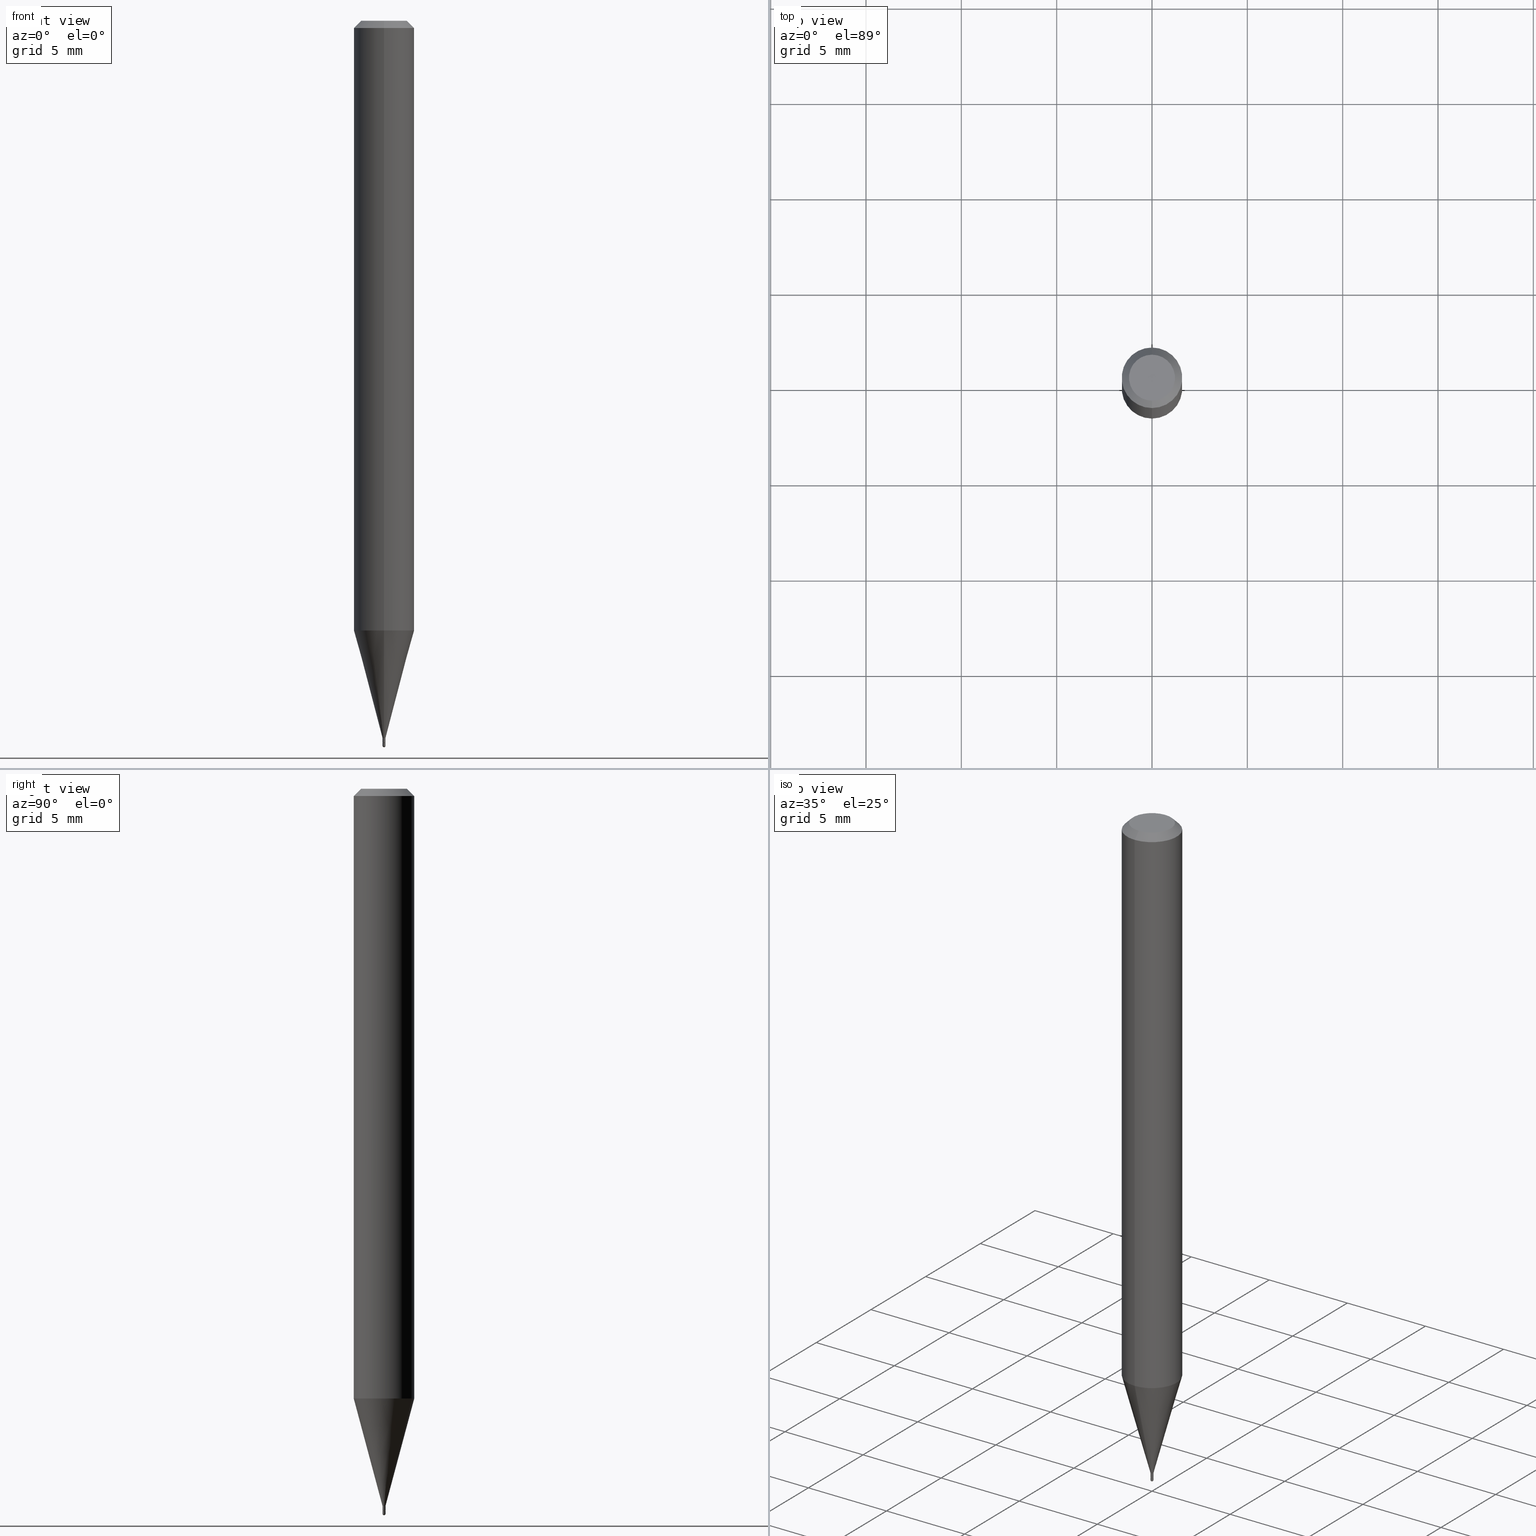
[diagram: canonical four-view strip — front | top / right | iso, engineering-drawing reading convention]
A machine part, canonical four-view strip (front | top / right | iso — engineering-drawing reading convention). The complete STEP part file that produces these views, byte-faithful:
ISO-10303-21;
HEADER;
FILE_DESCRIPTION (( 'STEP AP203' ),
    '1' );
FILE_NAME ('03030.STEP',
    '2024-03-08T18:01:40',
    ( '' ),
    ( '' ),
    'SwSTEP 2.0',
    'SolidWorks 2023',
    '' );
FILE_SCHEMA (( 'CONFIG_CONTROL_DESIGN' ));
ENDSEC;

DATA;
#1 = CALENDAR_DATE ( 2024, 8, 3 ) ;
#2 = EDGE_CURVE ( 'NONE', #227, #198, #40, .T. ) ;
#3 = APPROVAL ( #460, 'UNSPECIFIED' ) ;
#4 = AXIS2_PLACEMENT_3D ( 'NONE', #124, #237, #384 ) ;
#5 = CARTESIAN_POINT ( 'NONE',  ( 0.000000000000000000, 0.000000000000000000, 0.000000000000000000 ) ) ;
#6 = EDGE_CURVE ( 'NONE', #440, #257, #303, .T. ) ;
#7 = CARTESIAN_POINT ( 'NONE',  ( 2.094888803309526104E-17, 0.002999999999994793724, -1.491000000000000103 ) ) ;
#8 = DIRECTION ( 'NONE',  ( -2.445479479011040781E-29, 3.491466054748990607E-15, 1.000000000000000000 ) ) ;
#9 = CARTESIAN_POINT ( 'NONE',  ( -4.287811248607203282E-16, -0.06250000000000005551, -0.01499999999999954321 ) ) ;
#10 = DIRECTION ( 'NONE',  ( 1.000000000000000000, -6.982962677686332186E-15, 0.000000000000000000 ) ) ;
#11 = CIRCLE ( 'NONE', #178, 0.06250000000000000000 ) ;
#12 = AXIS2_PLACEMENT_3D ( 'NONE', #200, #208, #428 ) ;
#13 = EDGE_CURVE ( 'NONE', #150, #52, #356, .T. ) ;
#14 = DIRECTION ( 'NONE',  ( -6.982962677686265922E-15, -1.000000000000000000, 3.491466054748990607E-15 ) ) ;
#15 = DIRECTION ( 'NONE',  ( -1.000000000000000000, 6.982962677686265922E-15, -4.883557194083112340E-29 ) ) ;
#16 = PRODUCT ( '03030', '03030', '', ( #262 ) ) ;
#17 = CARTESIAN_POINT ( 'NONE',  ( -0.003000000000000000062, -5.194956838158857898E-15, -1.491000000000000103 ) ) ;
#18 = PRODUCT_DEFINITION ( 'UNKNOWN', '', #285, #137 ) ;
#19 = CIRCLE ( 'NONE', #131, 0.06250000000000000000 ) ;
#20 =( GEOMETRIC_REPRESENTATION_CONTEXT ( 3 ) GLOBAL_UNCERTAINTY_ASSIGNED_CONTEXT ( ( #495 ) ) GLOBAL_UNIT_ASSIGNED_CONTEXT ( ( #416, #158, #461 ) ) REPRESENTATION_CONTEXT ( 'NONE', 'WORKASPACE' ) );
#21 = DIRECTION ( 'NONE',  ( -2.445479479011041062E-29, 3.491466054748990607E-15, 1.000000000000000000 ) ) ;
#22 = ORIENTED_EDGE ( 'NONE', *, *, #498, .T. ) ;
#23 = PRODUCT_RELATED_PRODUCT_CATEGORY ( 'detail', '', ( #16 ) ) ;
#24 = CIRCLE ( 'NONE', #509, 0.003000000000000000062 ) ;
#25 = ADVANCED_FACE ( 'NONE', ( #429 ), #456, .T. ) ;
#26 = CARTESIAN_POINT ( 'NONE',  ( -4.364351673553607559E-16, -0.06250000000000438538, -1.258942976949652293 ) ) ;
#27 = SECURITY_CLASSIFICATION_LEVEL ( 'unclassified' ) ;
#28 = ORIENTED_EDGE ( 'NONE', *, *, #13, .T. ) ;
#29 = DIRECTION ( 'NONE',  ( -6.982962677686266711E-15, -1.000000000000000000, 3.491466054748991790E-15 ) ) ;
#30 = EDGE_LOOP ( 'NONE', ( #174, #22, #167, #504 ) ) ;
#31 = ORIENTED_EDGE ( 'NONE', *, *, #272, .T. ) ;
#32 = EDGE_CURVE ( 'NONE', #453, #406, #55, .T. ) ;
#33 = CARTESIAN_POINT ( 'NONE',  ( -5.856627857448510527E-45, 8.361639316576110184E-31, 2.394879166934145762E-16 ) ) ;
#34 = CALENDAR_DATE ( 2024, 8, 3 ) ;
#35 = AXIS2_PLACEMENT_3D ( 'NONE', #222, #282, #29 ) ;
#36 = AXIS2_PLACEMENT_3D ( 'NONE', #466, #79, #474 ) ;
#37 = DIRECTION ( 'NONE',  ( -6.982962677686265922E-15, -1.000000000000000000, 3.483106191921935554E-15 ) ) ;
#38 = CARTESIAN_POINT ( 'NONE',  ( 3.646209903205462455E-29, -5.205775887630746110E-15, -1.491000000000000103 ) ) ;
#39 = EDGE_CURVE ( 'NONE', #284, #470, #368, .T. ) ;
#40 = LINE ( 'NONE', #308, #344 ) ;
#41 = DIRECTION ( 'NONE',  ( 4.937700262164548042E-15, 0.7071067811865451302, -0.7071067811865499042 ) ) ;
#42 = DIRECTION ( 'NONE',  ( -4.851104656540964275E-15, -0.7071067811865500152, -0.7071067811865450192 ) ) ;
#43 = CARTESIAN_POINT ( 'NONE',  ( 3.644987163465957173E-29, -5.204030154603372027E-15, -1.490500000000000158 ) ) ;
#44 = VECTOR ( 'NONE', #398, 39.37007874015748143 ) ;
#45 = LINE ( 'NONE', #234, #328 ) ;
#46 = DIRECTION ( 'NONE',  ( -2.445479479011041062E-29, 3.491466054748990607E-15, 1.000000000000000000 ) ) ;
#47 = ORIENTED_EDGE ( 'NONE', *, *, #6, .T. ) ;
#48 = DIRECTION ( 'NONE',  ( 2.445479479011041062E-29, -3.491466054748990607E-15, -1.000000000000000000 ) ) ;
#49 = DIRECTION ( 'NONE',  ( -2.445479479011041062E-29, 3.491466054748990607E-15, 1.000000000000000000 ) ) ;
#50 = CARTESIAN_POINT ( 'NONE',  ( 1.776356839403896518E-17, 0.002499999999994794147, -1.491000000000000103 ) ) ;
#51 = CARTESIAN_POINT ( 'NONE',  ( 3.644987163465957173E-29, -5.204030154603372027E-15, -1.490500000000000158 ) ) ;
#52 = VERTEX_POINT ( 'NONE', #487 ) ;
#53 = DIRECTION ( 'NONE',  ( -1.000000000000000000, 6.982962677686265922E-15, -4.876176775795935793E-29 ) ) ;
#54 = ADVANCED_FACE ( 'NONE', ( #250 ), #274, .T. ) ;
#55 = CIRCLE ( 'NONE', #85, 0.002500000000000000052 ) ;
#56 = ORIENTED_EDGE ( 'NONE', *, *, #122, .F. ) ;
#57 = CARTESIAN_POINT ( 'NONE',  ( 0.000000000000000000, 0.000000000000000000, 0.000000000000000000 ) ) ;
#58 = ADVANCED_FACE ( 'NONE', ( #390 ), #397, .T. ) ;
#59 = DIRECTION ( 'NONE',  ( -4.937700262164674260E-15, -0.7071067811865632269, 0.7071067811865319186 ) ) ;
#60 = ADVANCED_FACE ( 'NONE', ( #331 ), #214, .F. ) ;
#61 = EDGE_CURVE ( 'NONE', #325, #482, #471, .T. ) ;
#62 = DIRECTION ( 'NONE',  ( -6.982962677686265922E-15, -1.000000000000000000, 3.483106191921935554E-15 ) ) ;
#63 = FACE_OUTER_BOUND ( 'NONE', #402, .T. ) ;
#64 = AXIS2_PLACEMENT_3D ( 'NONE', #57, #49, #110 ) ;
#65 = CIRCLE ( 'NONE', #423, 0.002999999999999833963 ) ;
#66 = ORIENTED_EDGE ( 'NONE', *, *, #305, .F. ) ;
#67 = LENGTH_MEASURE_WITH_UNIT ( LENGTH_MEASURE( 0.02539999999999999897 ), #347 );
#68 = DIRECTION ( 'NONE',  ( 1.000000000000000000, -6.982962677686332186E-15, 0.000000000000000000 ) ) ;
#69 = PERSON_AND_ORGANIZATION ( #252, #185 ) ;
#70 = DIRECTION ( 'NONE',  ( -2.445468806185136877E-29, 3.491481338843145188E-15, 1.000000000000000000 ) ) ;
#71 = COORDINATED_UNIVERSAL_TIME_OFFSET ( 5, 0, .BEHIND. ) ;
#72 = EDGE_CURVE ( 'NONE', #227, #357, #449, .T. ) ;
#73 = CARTESIAN_POINT ( 'NONE',  ( 2.131628207280246368E-17, 0.002999999999999924168, -1.047439816424670734E-17 ) ) ;
#74 = CARTESIAN_POINT ( 'NONE',  ( 2.131628207283901629E-17, 0.002999999999994690074, -1.497000000000000552 ) ) ;
#75 = VECTOR ( 'NONE', #149, 39.37007874015748143 ) ;
#76 = APPLICATION_PROTOCOL_DEFINITION ( 'international standard', 'config_control_design', 1994, #132 ) ;
#77 = LINE ( 'NONE', #73, #346 ) ;
#78 = EDGE_LOOP ( 'NONE', ( #31, #502, #130, #411 ) ) ;
#79 = DIRECTION ( 'NONE',  ( 1.000000000000000000, -6.982962677686265922E-15, 4.883557194083112340E-29 ) ) ;
#80 = CARTESIAN_POINT ( 'NONE',  ( -2.094888803302188156E-17, -0.003000000000005137446, -1.490500000000000158 ) ) ;
#81 = DIRECTION ( 'NONE',  ( -6.982962677686265922E-15, -1.000000000000000000, 0.000000000000000000 ) ) ;
#82 = ORIENTED_EDGE ( 'NONE', *, *, #104, .T. ) ;
#83 = CIRCLE ( 'NONE', #159, 0.06250000000000000000 ) ;
#84 = DIRECTION ( 'NONE',  ( -6.982962677686265922E-15, -1.000000000000000000, 3.491466054748990607E-15 ) ) ;
#85 = AXIS2_PLACEMENT_3D ( 'NONE', #180, #244, #317 ) ;
#86 = ADVANCED_FACE ( 'NONE', ( #405 ), #457, .T. ) ;
#87 = MANIFOLD_SOLID_BREP ( 'Body-Move/Copy2[1]', #142 ) ;
#88 = MANIFOLD_SOLID_BREP ( 'Body-Move/Copy2[2]', #441 ) ;
#89 = ORIENTED_EDGE ( 'NONE', *, *, #473, .F. ) ;
#90 = FACE_OUTER_BOUND ( 'NONE', #30, .T. ) ;
#91 = CARTESIAN_POINT ( 'NONE',  ( 3.646209903205462455E-29, -5.205775887630746110E-15, -1.491000000000000103 ) ) ;
#92 = VECTOR ( 'NONE', #59, 39.37007874015748143 ) ;
#93 = CC_DESIGN_PERSON_AND_ORGANIZATION_ASSIGNMENT ( #123, #339, ( #18 ) ) ;
#94 = AXIS2_PLACEMENT_3D ( 'NONE', #38, #116, #231 ) ;
#95 = CARTESIAN_POINT ( 'NONE',  ( 3.840629472727447874E-16, 0.04749999999999999362, 7.364327909283752044E-17 ) ) ;
#96 = PERSON_AND_ORGANIZATION_ROLE ( 'classification_officer' ) ;
#97 = CARTESIAN_POINT ( 'NONE',  ( -0.003000000000000000062, 2.131628207280300602E-17, -1.475680527076471750E-31 ) ) ;
#98 = CONICAL_SURFACE ( 'NONE', #12, 0.06250000000000000000, 0.7853981633974483900 ) ;
#99 = DIRECTION ( 'NONE',  ( -2.445479479011041062E-29, 3.491466054748990607E-15, 1.000000000000000000 ) ) ;
#100 = CARTESIAN_POINT ( 'NONE',  ( 4.440892098500932831E-16, 0.06249999999999560074, -1.258942976949652737 ) ) ;
#101 = CYLINDRICAL_SURFACE ( 'NONE', #492, 0.003000000000000000062 ) ;
#102 = DATE_AND_TIME ( #34, #276 ) ;
#103 = ORIENTED_EDGE ( 'NONE', *, *, #309, .T. ) ;
#104 = EDGE_CURVE ( 'NONE', #52, #257, #19, .T. ) ;
#105 = ORIENTED_EDGE ( 'NONE', *, *, #61, .T. ) ;
#106 = FACE_OUTER_BOUND ( 'NONE', #312, .T. ) ;
#107 = AXIS2_PLACEMENT_3D ( 'NONE', #43, #239, #202 ) ;
#108 = ORIENTED_EDGE ( 'NONE', *, *, #181, .F. ) ;
#109 = ORIENTED_EDGE ( 'NONE', *, *, #134, .T. ) ;
#110 = DIRECTION ( 'NONE',  ( -6.982962677686265922E-15, -1.000000000000000000, 3.491466054748990607E-15 ) ) ;
#111 = ORIENTED_EDGE ( 'NONE', *, *, #361, .T. ) ;
#112 = LINE ( 'NONE', #9, #493 ) ;
#113 = CARTESIAN_POINT ( 'NONE',  ( 1.953992523343893681E-17, 0.002499999999994794147, -1.491000000000000103 ) ) ;
#114 = EDGE_LOOP ( 'NONE', ( #424, #47, #127, #329 ) ) ;
#115 = PERSON_AND_ORGANIZATION_ROLE ( 'creator' ) ;
#116 = DIRECTION ( 'NONE',  ( -2.445479479011041062E-29, 3.491466054748990607E-15, 1.000000000000000000 ) ) ;
#117 = ORIENTED_EDGE ( 'NONE', *, *, #294, .T. ) ;
#118 = ORIENTED_EDGE ( 'NONE', *, *, #400, .T. ) ;
#119 = DIRECTION ( 'NONE',  ( 1.000000000000000000, -6.982962677686265922E-15, 4.883557194083112340E-29 ) ) ;
#120 = ORIENTED_EDGE ( 'NONE', *, *, #314, .F. ) ;
#121 = CIRCLE ( 'NONE', #258, 0.003000000000000000062 ) ;
#122 = EDGE_CURVE ( 'NONE', #238, #440, #190, .T. ) ;
#123 = PERSON_AND_ORGANIZATION ( #252, #185 ) ;
#124 = CARTESIAN_POINT ( 'NONE',  ( 3.646193990022038953E-29, -5.205798676215130324E-15, -1.491000000000000103 ) ) ;
#125 = CARTESIAN_POINT ( 'NONE',  ( 2.131628207283885605E-17, 0.002999999999994711758, -1.490500000000000158 ) ) ;
#126 = ORIENTED_EDGE ( 'NONE', *, *, #232, .T. ) ;
#127 = ORIENTED_EDGE ( 'NONE', *, *, #104, .F. ) ;
#128 = DIRECTION ( 'NONE',  ( -6.982962677686265133E-15, -1.000000000000000000, 0.000000000000000000 ) ) ;
#129 = DIRECTION ( 'NONE',  ( -6.982962677686264344E-15, -1.000000000000000000, 0.000000000000000000 ) ) ;
#130 = ORIENTED_EDGE ( 'NONE', *, *, #271, .F. ) ;
#131 = AXIS2_PLACEMENT_3D ( 'NONE', #376, #366, #62 ) ;
#132 = APPLICATION_CONTEXT ( 'configuration controlled 3d designs of mechanical parts and assemblies' ) ;
#133 = DIRECTION ( 'NONE',  ( -2.445479479011041062E-29, 3.491466054748990607E-15, 1.000000000000000000 ) ) ;
#134 = EDGE_CURVE ( 'NONE', #482, #325, #144, .T. ) ;
#135 = FACE_OUTER_BOUND ( 'NONE', #481, .T. ) ;
#136 = CYLINDRICAL_SURFACE ( 'NONE', #369, 0.06250000000000000000 ) ;
#137 = DESIGN_CONTEXT ( 'detailed design', #132, 'design' ) ;
#138 = CARTESIAN_POINT ( 'NONE',  ( 0.000000000000000000, 0.000000000000000000, 0.000000000000000000 ) ) ;
#139 = SHAPE_DEFINITION_REPRESENTATION ( #496, #233 ) ;
#140 = ORIENTED_EDGE ( 'NONE', *, *, #469, .T. ) ;
#141 = CARTESIAN_POINT ( 'NONE',  ( 3.621755108415351772E-29, -5.170861227083255778E-15, -1.481000000000000094 ) ) ;
#142 = CLOSED_SHELL ( 'NONE', ( #177, #484, #263, #183, #370 ) ) ;
#143 = ADVANCED_FACE ( 'NONE', ( #63 ), #372, .F. ) ;
#144 = CIRCLE ( 'NONE', #35, 0.04749999999999999362 ) ;
#145 = DIRECTION ( 'NONE',  ( 2.445479479011041062E-29, -3.491466054748990607E-15, -1.000000000000000000 ) ) ;
#146 = LOCAL_TIME ( 13, 1, 40.00000000000000000, #71 ) ;
#147 = CARTESIAN_POINT ( 'NONE',  ( 0.000000000000000000, 0.000000000000000000, 0.000000000000000000 ) ) ;
#148 = DIRECTION ( 'NONE',  ( -2.445479479011041062E-29, 3.491466054748990607E-15, 1.000000000000000000 ) ) ;
#149 = DIRECTION ( 'NONE',  ( 1.839019923739601104E-15, 0.2588190451025250693, 0.9659258262890670910 ) ) ;
#150 = VERTEX_POINT ( 'NONE', #26 ) ;
#151 = CARTESIAN_POINT ( 'NONE',  ( 3.660866802859150889E-29, -5.226747564248190733E-15, -1.497000000000000552 ) ) ;
#152 = APPLICATION_CONTEXT ( 'configuration controlled 3d designs of mechanical parts and assemblies' ) ;
#153 = EDGE_LOOP ( 'NONE', ( #350, #220, #404, #414 ) ) ;
#154 = CARTESIAN_POINT ( 'NONE',  ( 3.316907271900976096E-16, 0.04749999999999999362, -4.610067925386976768E-17 ) ) ;
#155 = ORIENTED_EDGE ( 'NONE', *, *, #72, .T. ) ;
#156 = DIRECTION ( 'NONE',  ( -6.982962677686265922E-15, -1.000000000000000000, 4.370956789862821150E-15 ) ) ;
#157 = AXIS2_PLACEMENT_3D ( 'NONE', #454, #505, #451 ) ;
#158 =( NAMED_UNIT ( * ) PLANE_ANGLE_UNIT ( ) SI_UNIT ( $, .RADIAN. ) );
#159 = AXIS2_PLACEMENT_3D ( 'NONE', #455, #189, #156 ) ;
#160 = ORIENTED_EDGE ( 'NONE', *, *, #2, .T. ) ;
#161 = CARTESIAN_POINT ( 'NONE',  ( -2.094888803302161039E-17, -0.003000000000005143951, -1.497000000000000552 ) ) ;
#162 = EDGE_LOOP ( 'NONE', ( #103, #291 ) ) ;
#163 = CC_DESIGN_DATE_AND_TIME_ASSIGNMENT ( #102, #336, ( #210 ) ) ;
#164 = CARTESIAN_POINT ( 'NONE',  ( 0.000000000000000000, 0.000000000000000000, 0.000000000000000000 ) ) ;
#165 = DIRECTION ( 'NONE',  ( -2.445479479011041062E-29, 3.491466054748990607E-15, 1.000000000000000000 ) ) ;
#166 = AXIS2_PLACEMENT_3D ( 'NONE', #154, #145, #450 ) ;
#167 = ORIENTED_EDGE ( 'NONE', *, *, #338, .T. ) ;
#168 = CC_DESIGN_APPROVAL ( #489, ( #210 ) ) ;
#169 = ORIENTED_EDGE ( 'NONE', *, *, #467, .F. ) ;
#170 = CARTESIAN_POINT ( 'NONE',  ( 3.668219218516502966E-31, -5.237199082123403129E-17, -0.01499999999999976179 ) ) ;
#171 = EDGE_CURVE ( 'NONE', #463, #216, #464, .T. ) ;
#172 = DIRECTION ( 'NONE',  ( 2.438088387897960049E-29, -3.491481338843145188E-15, -1.000000000000000000 ) ) ;
#173 = CARTESIAN_POINT ( 'NONE',  ( 0.000000000000000000, 0.000000000000000000, 0.000000000000000000 ) ) ;
#174 = ORIENTED_EDGE ( 'NONE', *, *, #206, .F. ) ;
#175 = CARTESIAN_POINT ( 'NONE',  ( 2.327027459614661497E-16, 0.002999999999994752090, -1.481000000000000094 ) ) ;
#176 = CARTESIAN_POINT ( 'NONE',  ( 3.667818384447574759E-29, -5.237773099324335255E-15, -1.500000000000000222 ) ) ;
#177 = ADVANCED_FACE ( 'NONE', ( #106 ), #101, .T. ) ;
#178 = AXIS2_PLACEMENT_3D ( 'NONE', #179, #479, #318 ) ;
#179 = CARTESIAN_POINT ( 'NONE',  ( 3.078719215375445112E-29, -4.395556668884352464E-15, -1.258942976949652515 ) ) ;
#180 = CARTESIAN_POINT ( 'NONE',  ( 3.646209903205462455E-29, -5.205775887630746110E-15, -1.491000000000000103 ) ) ;
#181 = EDGE_CURVE ( 'NONE', #325, #257, #45, .T. ) ;
#182 = ORIENTED_EDGE ( 'NONE', *, *, #351, .F. ) ;
#183 = ADVANCED_FACE ( 'NONE', ( #306 ), #340, .T. ) ;
#184 = APPROVAL_DATE_TIME ( #296, #3 ) ;
#185 = ORGANIZATION ( 'UNSPECIFIED', 'UNSPECIFIED', '' ) ;
#186 = AXIS2_PLACEMENT_3D ( 'NONE', #173, #319, #84 ) ;
#187 = AXIS2_PLACEMENT_3D ( 'NONE', #141, #46, #264 ) ;
#188 = DATE_AND_TIME ( #212, #203 ) ;
#189 = DIRECTION ( 'NONE',  ( -2.445479479011041062E-29, 3.491466054748990607E-15, 1.000000000000000000 ) ) ;
#190 = LINE ( 'NONE', #501, #75 ) ;
#191 = CALENDAR_DATE ( 2024, 8, 3 ) ;
#192 = DIRECTION ( 'NONE',  ( 1.000000000000000000, -6.982962677686332186E-15, 0.000000000000000000 ) ) ;
#193 = DATE_AND_TIME ( #191, #409 ) ;
#194 = AXIS2_PLACEMENT_3D ( 'NONE', #349, #165, #129 ) ;
#195 = ADVANCED_FACE ( 'NONE', ( #383 ), #434, .T. ) ;
#196 = ORIENTED_EDGE ( 'NONE', *, *, #272, .F. ) ;
#197 = DIRECTION ( 'NONE',  ( 0.000000000000000000, 0.000000000000000000, 1.000000000000000000 ) ) ;
#198 = VERTEX_POINT ( 'NONE', #270 ) ;
#199 = COORDINATED_UNIVERSAL_TIME_OFFSET ( 5, 0, .BEHIND. ) ;
#200 = CARTESIAN_POINT ( 'NONE',  ( 3.668219218516502966E-31, -5.237199082123403129E-17, -0.01499999999999976179 ) ) ;
#201 = VECTOR ( 'NONE', #70, 39.37007874015748143 ) ;
#202 = DIRECTION ( 'NONE',  ( -6.982962677686265922E-15, -1.000000000000000000, 0.000000000000000000 ) ) ;
#203 = LOCAL_TIME ( 13, 1, 40.00000000000000000, #323 ) ;
#204 = ORIENTED_EDGE ( 'NONE', *, *, #32, .T. ) ;
#205 = DIRECTION ( 'NONE',  ( 6.982962677686265922E-15, 1.000000000000000000, -3.483106191921935554E-15 ) ) ;
#206 = EDGE_CURVE ( 'NONE', #406, #293, #433, .T. ) ;
#207 = AXIS2_PLACEMENT_3D ( 'NONE', #91, #476, #81 ) ;
#208 = DIRECTION ( 'NONE',  ( 2.445479479011041062E-29, -3.491466054748990607E-15, -1.000000000000000000 ) ) ;
#209 = VECTOR ( 'NONE', #459, 39.37007874015748143 ) ;
#210 = SECURITY_CLASSIFICATION ( '', '', #27 ) ;
#211 = ADVANCED_FACE ( 'NONE', ( #90 ), #442, .T. ) ;
#212 = CALENDAR_DATE ( 2024, 8, 3 ) ;
#213 = ORIENTED_EDGE ( 'NONE', *, *, #321, .F. ) ;
#214 = PLANE ( 'NONE',  #166 ) ;
#215 = DIRECTION ( 'NONE',  ( -2.445468806185136597E-29, 3.491481338843145583E-15, 1.000000000000000000 ) ) ;
#216 = VERTEX_POINT ( 'NONE', #278 ) ;
#217 = DIRECTION ( 'NONE',  ( -2.445468806185136597E-29, 3.491481338843145583E-15, 1.000000000000000000 ) ) ;
#218 = AXIS2_PLACEMENT_3D ( 'NONE', #164, #215, #462 ) ;
#219 = DIRECTION ( 'NONE',  ( 1.000000000000000000, -7.105427357601001070E-15, 4.926315508542082329E-29 ) ) ;
#220 = ORIENTED_EDGE ( 'NONE', *, *, #61, .F. ) ;
#221 = EDGE_CURVE ( 'NONE', #238, #216, #228, .T. ) ;
#222 = CARTESIAN_POINT ( 'NONE',  ( -5.856627857448510527E-45, 8.361639316576110184E-31, 2.394879166934145762E-16 ) ) ;
#223 = FACE_OUTER_BOUND ( 'NONE', #378, .T. ) ;
#224 = EDGE_LOOP ( 'NONE', ( #204, #438, #196, #255 ) ) ;
#225 = COORDINATED_UNIVERSAL_TIME_OFFSET ( 5, 0, .BEHIND. ) ;
#226 = APPROVAL_STATUS ( 'not_yet_approved' ) ;
#227 = VERTEX_POINT ( 'NONE', #292 ) ;
#228 = CIRCLE ( 'NONE', #187, 0.002999999999999923735 ) ;
#229 = APPROVAL_ROLE ( '' ) ;
#230 = DIRECTION ( 'NONE',  ( 1.000000000000000000, 0.000000000000000000, 0.000000000000000000 ) ) ;
#231 = DIRECTION ( 'NONE',  ( -6.982962677686265922E-15, -1.000000000000000000, 0.000000000000000000 ) ) ;
#232 = EDGE_CURVE ( 'NONE', #357, #256, #121, .T. ) ;
#233 = ADVANCED_BREP_SHAPE_REPRESENTATION ( '03030', ( #87, #88, #354 ), #20 ) ;
#234 = CARTESIAN_POINT ( 'NONE',  ( 4.364351673553919652E-16, 0.06249999999999995143, -0.01499999999999997863 ) ) ;
#235 = APPROVAL_ROLE ( '' ) ;
#236 = SPHERICAL_SURFACE ( 'NONE', #36, 0.002999999999999833963 ) ;
#237 = DIRECTION ( 'NONE',  ( -2.445468806185136597E-29, 3.491481338843145583E-15, 1.000000000000000000 ) ) ;
#238 = VERTEX_POINT ( 'NONE', #175 ) ;
#239 = DIRECTION ( 'NONE',  ( -2.445479479011041062E-29, 3.491466054748990607E-15, 1.000000000000000000 ) ) ;
#240 = EDGE_LOOP ( 'NONE', ( #477, #334, #28, #120 ) ) ;
#241 = FACE_OUTER_BOUND ( 'NONE', #240, .T. ) ;
#242 = AXIS2_PLACEMENT_3D ( 'NONE', #5, #133, #14 ) ;
#243 = FACE_OUTER_BOUND ( 'NONE', #162, .T. ) ;
#244 = DIRECTION ( 'NONE',  ( -2.445479479011041062E-29, 3.491466054748990607E-15, 1.000000000000000000 ) ) ;
#245 = APPROVAL_PERSON_ORGANIZATION ( #510, #489, #229 ) ;
#246 = DIRECTION ( 'NONE',  ( 1.000000000000000000, -6.982962677686332186E-15, 0.000000000000000000 ) ) ;
#247 = DIRECTION ( 'NONE',  ( -2.445468806185136597E-29, 3.491481338843145583E-15, 1.000000000000000000 ) ) ;
#248 = CC_DESIGN_PERSON_AND_ORGANIZATION_ASSIGNMENT ( #506, #96, ( #210 ) ) ;
#249 = ORIENTED_EDGE ( 'NONE', *, *, #309, .F. ) ;
#250 = FACE_OUTER_BOUND ( 'NONE', #392, .T. ) ;
#251 = AXIS2_PLACEMENT_3D ( 'NONE', #483, #48, #205 ) ;
#252 = PERSON ( 'UNSPECIFIED', 'UNSPECIFIED', 'UNSPECIFIED', ('UNSPECIFIED'), ('UNSPECIFIED'), ('UNSPECIFIED') ) ;
#253 = EDGE_CURVE ( 'NONE', #256, #470, #24, .T. ) ;
#254 = AXIS2_PLACEMENT_3D ( 'NONE', #266, #217, #192 ) ;
#255 = ORIENTED_EDGE ( 'NONE', *, *, #338, .F. ) ;
#256 = VERTEX_POINT ( 'NONE', #486 ) ;
#257 = VERTEX_POINT ( 'NONE', #393 ) ;
#258 = AXIS2_PLACEMENT_3D ( 'NONE', #413, #381, #10 ) ;
#259 = CARTESIAN_POINT ( 'NONE',  ( 0.000000000000000000, 0.000000000000000000, 0.000000000000000000 ) ) ;
#260 = EDGE_LOOP ( 'NONE', ( #508, #387, #169, #213 ) ) ;
#261 = DIRECTION ( 'NONE',  ( -2.445468806185136597E-29, 3.491481338843145583E-15, 1.000000000000000000 ) ) ;
#262 = MECHANICAL_CONTEXT ( 'NONE', #152, 'mechanical' ) ;
#263 = ADVANCED_FACE ( 'NONE', ( #243 ), #391, .F. ) ;
#264 = DIRECTION ( 'NONE',  ( -6.982962677686264344E-15, -1.000000000000000000, 0.000000000000000000 ) ) ;
#265 = ORIENTED_EDGE ( 'NONE', *, *, #321, .T. ) ;
#266 = CARTESIAN_POINT ( 'NONE',  ( 3.660866802859150889E-29, -5.226747564248190733E-15, -1.497000000000000552 ) ) ;
#267 = ORIENTED_EDGE ( 'NONE', *, *, #400, .F. ) ;
#268 = PERSON_AND_ORGANIZATION ( #252, #185 ) ;
#269 = ADVANCED_FACE ( 'NONE', ( #352 ), #98, .T. ) ;
#270 = CARTESIAN_POINT ( 'NONE',  ( 0.003000000000000000062, -5.226747564248189155E-15, -1.491000000000000103 ) ) ;
#271 = EDGE_CURVE ( 'NONE', #216, #238, #485, .T. ) ;
#272 = EDGE_CURVE ( 'NONE', #463, #293, #322, .T. ) ;
#273 = CARTESIAN_POINT ( 'NONE',  ( -4.364351673553916201E-16, -0.06250000000000000000, 2.182166284218119129E-16 ) ) ;
#274 = CYLINDRICAL_SURFACE ( 'NONE', #186, 0.002999999999999924168 ) ;
#275 = AXIS2_PLACEMENT_3D ( 'NONE', #358, #21, #494 ) ;
#276 = LOCAL_TIME ( 13, 1, 40.00000000000000000, #225 ) ;
#277 = CARTESIAN_POINT ( 'NONE',  ( -1.745740669417920106E-17, -0.002500000000005205957, -1.491000000000000103 ) ) ;
#278 = CARTESIAN_POINT ( 'NONE',  ( -2.094888803302204488E-17, -0.003000000000005094512, -1.481000000000000094 ) ) ;
#279 = CIRCLE ( 'NONE', #408, 0.003000000000000000062 ) ;
#280 = APPROVAL_PERSON_ORGANIZATION ( #290, #3, #511 ) ;
#281 = DIRECTION ( 'NONE',  ( -6.982962677686265922E-15, -1.000000000000000000, 3.491466054748990607E-15 ) ) ;
#282 = DIRECTION ( 'NONE',  ( -2.445479479011041062E-29, 3.491466054748990607E-15, 1.000000000000000000 ) ) ;
#283 = ORIENTED_EDGE ( 'NONE', *, *, #134, .F. ) ;
#284 = VERTEX_POINT ( 'NONE', #176 ) ;
#285 = PRODUCT_DEFINITION_FORMATION_WITH_SPECIFIED_SOURCE ( 'ANY', '', #16, .NOT_KNOWN. ) ;
#286 = AXIS2_PLACEMENT_3D ( 'NONE', #403, #332, #503 ) ;
#287 = CC_DESIGN_PERSON_AND_ORGANIZATION_ASSIGNMENT ( #377, #446, ( #285 ) ) ;
#288 = CARTESIAN_POINT ( 'NONE',  ( -2.094888803305826777E-17, -0.002999999999999924168, 1.047439816424670734E-17 ) ) ;
#289 = CC_DESIGN_SECURITY_CLASSIFICATION ( #210, ( #285 ) ) ;
#290 = PERSON_AND_ORGANIZATION ( #252, #185 ) ;
#291 = ORIENTED_EDGE ( 'NONE', *, *, #488, .T. ) ;
#292 = CARTESIAN_POINT ( 'NONE',  ( 0.003000000000000000062, -5.237222008264719754E-15, -1.497000000000000552 ) ) ;
#293 = VERTEX_POINT ( 'NONE', #125 ) ;
#294 = EDGE_CURVE ( 'NONE', #293, #463, #301, .T. ) ;
#295 = DIRECTION ( 'NONE',  ( 1.000000000000000000, -6.982962677686266711E-15, 4.876176775795935232E-29 ) ) ;
#296 = DATE_AND_TIME ( #1, #146 ) ;
#297 = DIRECTION ( 'NONE',  ( -2.445479479011040781E-29, 3.491466054748990607E-15, 1.000000000000000000 ) ) ;
#298 = ORIENTED_EDGE ( 'NONE', *, *, #221, .T. ) ;
#299 = DIRECTION ( 'NONE',  ( 7.105427357601001070E-15, 1.000000000000000000, 0.000000000000000000 ) ) ;
#300 = ADVANCED_FACE ( 'NONE', ( #348 ), #316, .T. ) ;
#301 = CIRCLE ( 'NONE', #107, 0.002999999999999924602 ) ;
#302 = CC_DESIGN_APPROVAL ( #3, ( #285 ) ) ;
#303 = LINE ( 'NONE', #478, #386 ) ;
#304 = DIRECTION ( 'NONE',  ( -2.445479479011041062E-29, 3.491466054748990607E-15, 1.000000000000000000 ) ) ;
#305 = EDGE_CURVE ( 'NONE', #440, #150, #11, .T. ) ;
#306 = FACE_OUTER_BOUND ( 'NONE', #452, .T. ) ;
#307 = ORIENTED_EDGE ( 'NONE', *, *, #498, .F. ) ;
#308 = CARTESIAN_POINT ( 'NONE',  ( 0.003000000000000000062, -2.094888803305880087E-17, 1.462853032738780615E-31 ) ) ;
#309 = EDGE_CURVE ( 'NONE', #198, #330, #279, .T. ) ;
#310 = DIRECTION ( 'NONE',  ( -2.445479479011041062E-29, 3.491466054748990607E-15, 1.000000000000000000 ) ) ;
#311 = CARTESIAN_POINT ( 'NONE',  ( 3.660610252972396344E-29, -5.227114958287934137E-15, -1.497000000000000108 ) ) ;
#312 = EDGE_LOOP ( 'NONE', ( #126, #360, #249, #419, #155 ) ) ;
#313 = ADVANCED_FACE ( 'NONE', ( #135 ), #422, .T. ) ;
#314 = EDGE_CURVE ( 'NONE', #257, #52, #345, .T. ) ;
#315 = VECTOR ( 'NONE', #439, 39.37007874015748143 ) ;
#316 = CYLINDRICAL_SURFACE ( 'NONE', #242, 0.002999999999999924168 ) ;
#317 = DIRECTION ( 'NONE',  ( -6.982962677686265922E-15, -1.000000000000000000, 0.000000000000000000 ) ) ;
#318 = DIRECTION ( 'NONE',  ( -6.982962677686265922E-15, -1.000000000000000000, 4.370956789862821150E-15 ) ) ;
#319 = DIRECTION ( 'NONE',  ( -2.445479479011041062E-29, 3.491466054748990607E-15, 1.000000000000000000 ) ) ;
#320 = ADVANCED_FACE ( 'NONE', ( #241 ), #136, .T. ) ;
#321 = EDGE_CURVE ( 'NONE', #216, #150, #491, .T. ) ;
#322 = CIRCLE ( 'NONE', #335, 0.002999999999999924602 ) ;
#323 = COORDINATED_UNIVERSAL_TIME_OFFSET ( 5, 0, .BEHIND. ) ;
#324 = CIRCLE ( 'NONE', #4, 0.003000000000000000062 ) ;
#325 = VERTEX_POINT ( 'NONE', #95 ) ;
#326 = APPROVAL_DATE_TIME ( #188, #489 ) ;
#327 = CC_DESIGN_PERSON_AND_ORGANIZATION_ASSIGNMENT ( #373, #115, ( #285 ) ) ;
#328 = VECTOR ( 'NONE', #41, 39.37007874015748143 ) ;
#329 = ORIENTED_EDGE ( 'NONE', *, *, #13, .F. ) ;
#330 = VERTEX_POINT ( 'NONE', #17 ) ;
#331 = FACE_OUTER_BOUND ( 'NONE', #417, .T. ) ;
#332 = DIRECTION ( 'NONE',  ( -2.445479479011041062E-29, 3.491466054748990607E-15, 1.000000000000000000 ) ) ;
#333 = CARTESIAN_POINT ( 'NONE',  ( 3.660610252972396344E-29, -5.227114958287934137E-15, -1.497000000000000108 ) ) ;
#334 = ORIENTED_EDGE ( 'NONE', *, *, #305, .T. ) ;
#335 = AXIS2_PLACEMENT_3D ( 'NONE', #51, #304, #475 ) ;
#336 = DATE_TIME_ROLE ( 'classification_date' ) ;
#337 = FACE_OUTER_BOUND ( 'NONE', #401, .T. ) ;
#338 = EDGE_CURVE ( 'NONE', #453, #463, #359, .T. ) ;
#339 = PERSON_AND_ORGANIZATION_ROLE ( 'creator' ) ;
#340 = SPHERICAL_SURFACE ( 'NONE', #399, 0.002999999999999833963 ) ;
#341 = CALENDAR_DATE ( 2024, 8, 3 ) ;
#342 = DIRECTION ( 'NONE',  ( -2.445468806185136877E-29, 3.491481338843145188E-15, 1.000000000000000000 ) ) ;
#343 = CARTESIAN_POINT ( 'NONE',  ( 3.621755108415351772E-29, -5.170861227083255778E-15, -1.481000000000000094 ) ) ;
#344 = VECTOR ( 'NONE', #342, 39.37007874015748143 ) ;
#345 = CIRCLE ( 'NONE', #353, 0.06250000000000000000 ) ;
#346 = VECTOR ( 'NONE', #297, 39.37007874015748143 ) ;
#347 =( LENGTH_UNIT ( ) NAMED_UNIT ( * ) SI_UNIT ( $, .METRE. ) );
#348 = FACE_OUTER_BOUND ( 'NONE', #78, .T. ) ;
#349 = CARTESIAN_POINT ( 'NONE',  ( 3.621755108415351772E-29, -5.170861227083255778E-15, -1.481000000000000094 ) ) ;
#350 = ORIENTED_EDGE ( 'NONE', *, *, #469, .F. ) ;
#351 = EDGE_CURVE ( 'NONE', #256, #330, #445, .T. ) ;
#352 = FACE_OUTER_BOUND ( 'NONE', #153, .T. ) ;
#353 = AXIS2_PLACEMENT_3D ( 'NONE', #170, #430, #37 ) ;
#354 = AXIS2_PLACEMENT_3D ( 'NONE', #147, #197, #230 ) ;
#355 = DIRECTION ( 'NONE',  ( -6.982962677686264344E-15, -1.000000000000000000, 0.000000000000000000 ) ) ;
#356 = LINE ( 'NONE', #273, #420 ) ;
#357 = VERTEX_POINT ( 'NONE', #74 ) ;
#358 = CARTESIAN_POINT ( 'NONE',  ( 3.646209903205462455E-29, -5.205775887630746110E-15, -1.491000000000000103 ) ) ;
#359 = LINE ( 'NONE', #277, #92 ) ;
#360 = ORIENTED_EDGE ( 'NONE', *, *, #351, .T. ) ;
#361 = EDGE_CURVE ( 'NONE', #470, #227, #385, .T. ) ;
#362 = AXIS2_PLACEMENT_3D ( 'NONE', #33, #99, #410 ) ;
#363 = APPROVAL_STATUS ( 'not_yet_approved' ) ;
#364 = CC_DESIGN_APPROVAL ( #421, ( #18 ) ) ;
#365 = CC_DESIGN_PERSON_AND_ORGANIZATION_ASSIGNMENT ( #268, #507, ( #16 ) ) ;
#366 = DIRECTION ( 'NONE',  ( -2.445479479011041062E-29, 3.491466054748990607E-15, 1.000000000000000000 ) ) ;
#367 = CYLINDRICAL_SURFACE ( 'NONE', #218, 0.003000000000000000062 ) ;
#368 = CIRCLE ( 'NONE', #394, 0.002999999999999833963 ) ;
#369 = AXIS2_PLACEMENT_3D ( 'NONE', #138, #148, #281 ) ;
#370 = ADVANCED_FACE ( 'NONE', ( #337 ), #367, .T. ) ;
#371 = APPROVAL_PERSON_ORGANIZATION ( #69, #421, #235 ) ;
#372 = PLANE ( 'NONE',  #157 ) ;
#373 = PERSON_AND_ORGANIZATION ( #252, #185 ) ;
#374 = ORIENTED_EDGE ( 'NONE', *, *, #72, .F. ) ;
#375 = ORIENTED_EDGE ( 'NONE', *, *, #221, .F. ) ;
#376 = CARTESIAN_POINT ( 'NONE',  ( 3.668219218516502966E-31, -5.237199082123403129E-17, -0.01499999999999976179 ) ) ;
#377 = PERSON_AND_ORGANIZATION ( #252, #185 ) ;
#378 = EDGE_LOOP ( 'NONE', ( #412, #118, #374, #380 ) ) ;
#379 = ORIENTED_EDGE ( 'NONE', *, *, #32, .F. ) ;
#380 = ORIENTED_EDGE ( 'NONE', *, *, #361, .F. ) ;
#381 = DIRECTION ( 'NONE',  ( -2.445468806185136597E-29, 3.491481338843145583E-15, 1.000000000000000000 ) ) ;
#382 = CARTESIAN_POINT ( 'NONE',  ( -3.773273898774340269E-16, -0.04749999999999999362, 4.053325542939916320E-16 ) ) ;
#383 = FACE_OUTER_BOUND ( 'NONE', #260, .T. ) ;
#384 = DIRECTION ( 'NONE',  ( 1.000000000000000000, -6.982962677686332186E-15, 0.000000000000000000 ) ) ;
#385 = CIRCLE ( 'NONE', #458, 0.003000000000000000062 ) ;
#386 = VECTOR ( 'NONE', #8, 39.37007874015748143 ) ;
#387 = ORIENTED_EDGE ( 'NONE', *, *, #122, .T. ) ;
#388 = AXIS2_PLACEMENT_3D ( 'NONE', #343, #310, #355 ) ;
#389 = DIRECTION ( 'NONE',  ( -2.445468806185136597E-29, 3.491481338843145583E-15, 1.000000000000000000 ) ) ;
#390 = FACE_OUTER_BOUND ( 'NONE', #114, .T. ) ;
#391 = PLANE ( 'NONE',  #395 ) ;
#392 = EDGE_LOOP ( 'NONE', ( #89, #117, #444, #375 ) ) ;
#393 = CARTESIAN_POINT ( 'NONE',  ( 4.440892098500935790E-16, 0.06249999999999995143, -0.01499999999999997863 ) ) ;
#394 = AXIS2_PLACEMENT_3D ( 'NONE', #432, #15, #128 ) ;
#395 = AXIS2_PLACEMENT_3D ( 'NONE', #7, #172, #53 ) ;
#396 = LOCAL_TIME ( 13, 1, 40.00000000000000000, #465 ) ;
#397 = CYLINDRICAL_SURFACE ( 'NONE', #64, 0.06250000000000000000 ) ;
#398 = DIRECTION ( 'NONE',  ( -1.807323732225330928E-15, -0.2588190451025182970, 0.9659258262890689783 ) ) ;
#399 = AXIS2_PLACEMENT_3D ( 'NONE', #311, #119, #480 ) ;
#400 = EDGE_CURVE ( 'NONE', #284, #357, #65, .T. ) ;
#401 = EDGE_LOOP ( 'NONE', ( #182, #447, #111, #160, #500 ) ) ;
#402 = EDGE_LOOP ( 'NONE', ( #379, #307 ) ) ;
#403 = CARTESIAN_POINT ( 'NONE',  ( 3.621755108415351772E-29, -5.170861227083255778E-15, -1.481000000000000094 ) ) ;
#404 = ORIENTED_EDGE ( 'NONE', *, *, #181, .T. ) ;
#405 = FACE_OUTER_BOUND ( 'NONE', #407, .T. ) ;
#406 = VERTEX_POINT ( 'NONE', #113 ) ;
#407 = EDGE_LOOP ( 'NONE', ( #56, #298, #265, #66 ) ) ;
#408 = AXIS2_PLACEMENT_3D ( 'NONE', #490, #389, #425 ) ;
#409 = LOCAL_TIME ( 13, 1, 40.00000000000000000, #199 ) ;
#410 = DIRECTION ( 'NONE',  ( -6.982962677686266711E-15, -1.000000000000000000, 3.491466054748991790E-15 ) ) ;
#411 = ORIENTED_EDGE ( 'NONE', *, *, #171, .F. ) ;
#412 = ORIENTED_EDGE ( 'NONE', *, *, #39, .F. ) ;
#413 = CARTESIAN_POINT ( 'NONE',  ( 3.660866802859150889E-29, -5.226747564248190733E-15, -1.497000000000000552 ) ) ;
#414 = ORIENTED_EDGE ( 'NONE', *, *, #314, .T. ) ;
#415 = APPROVAL_DATE_TIME ( #193, #421 ) ;
#416 =( CONVERSION_BASED_UNIT ( 'INCH', #67 ) LENGTH_UNIT ( ) NAMED_UNIT ( #497 ) );
#417 = EDGE_LOOP ( 'NONE', ( #105, #109 ) ) ;
#418 = DIRECTION ( 'NONE',  ( -2.445468806185136597E-29, 3.491481338843145583E-15, 1.000000000000000000 ) ) ;
#419 = ORIENTED_EDGE ( 'NONE', *, *, #2, .F. ) ;
#420 = VECTOR ( 'NONE', #437, 39.37007874015748143 ) ;
#421 = APPROVAL ( #226, 'UNSPECIFIED' ) ;
#422 = CONICAL_SURFACE ( 'NONE', #251, 0.06250000000000000000, 0.7853981633974483900 ) ;
#423 = AXIS2_PLACEMENT_3D ( 'NONE', #333, #219, #299 ) ;
#424 = ORIENTED_EDGE ( 'NONE', *, *, #467, .T. ) ;
#425 = DIRECTION ( 'NONE',  ( 1.000000000000000000, -6.982962677686332186E-15, 0.000000000000000000 ) ) ;
#426 = DATE_TIME_ROLE ( 'creation_date' ) ;
#427 = ORIENTED_EDGE ( 'NONE', *, *, #253, .F. ) ;
#428 = DIRECTION ( 'NONE',  ( 6.982962677686265922E-15, 1.000000000000000000, -3.483106191921935554E-15 ) ) ;
#429 = FACE_OUTER_BOUND ( 'NONE', #224, .T. ) ;
#430 = DIRECTION ( 'NONE',  ( -2.445479479011041062E-29, 3.491466054748990607E-15, 1.000000000000000000 ) ) ;
#431 = CC_DESIGN_DATE_AND_TIME_ASSIGNMENT ( #472, #426, ( #18 ) ) ;
#432 = CARTESIAN_POINT ( 'NONE',  ( 3.660610252972396344E-29, -5.227114958287934137E-15, -1.497000000000000108 ) ) ;
#433 = LINE ( 'NONE', #50, #315 ) ;
#434 = CONICAL_SURFACE ( 'NONE', #194, 0.002999999999999923735, 0.2617993877991502960 ) ;
#435 = CARTESIAN_POINT ( 'NONE',  ( -1.745740669417920106E-17, -0.002500000000005205957, -1.491000000000000103 ) ) ;
#436 = CARTESIAN_POINT ( 'NONE',  ( 3.660866802859150889E-29, -5.226747564248190733E-15, -1.497000000000000552 ) ) ;
#437 = DIRECTION ( 'NONE',  ( -2.445479479011040781E-29, 3.491466054748990607E-15, 1.000000000000000000 ) ) ;
#438 = ORIENTED_EDGE ( 'NONE', *, *, #206, .T. ) ;
#439 = DIRECTION ( 'NONE',  ( 5.024295867788190974E-15, 0.7071067811865681119, 0.7071067811865270336 ) ) ;
#440 = VERTEX_POINT ( 'NONE', #100 ) ;
#441 = CLOSED_SHELL ( 'NONE', ( #300, #25, #313, #58, #195, #86, #320, #269, #60, #143, #211, #54 ) ) ;
#442 = CONICAL_SURFACE ( 'NONE', #275, 0.002500000000000000052, 0.7853981633974739252 ) ;
#443 = CIRCLE ( 'NONE', #94, 0.002500000000000000052 ) ;
#444 = ORIENTED_EDGE ( 'NONE', *, *, #171, .T. ) ;
#445 = LINE ( 'NONE', #97, #201 ) ;
#446 = PERSON_AND_ORGANIZATION_ROLE ( 'design_supplier' ) ;
#447 = ORIENTED_EDGE ( 'NONE', *, *, #253, .T. ) ;
#448 = CARTESIAN_POINT ( 'NONE',  ( -2.094888803302204488E-17, -0.003000000000005094512, -1.481000000000000094 ) ) ;
#449 = CIRCLE ( 'NONE', #254, 0.003000000000000000062 ) ;
#450 = DIRECTION ( 'NONE',  ( 6.982962677686265922E-15, 1.000000000000000000, -3.491466054748990607E-15 ) ) ;
#451 = DIRECTION ( 'NONE',  ( -6.982962677686265922E-15, -1.000000000000000000, 3.491466054748990607E-15 ) ) ;
#452 = EDGE_LOOP ( 'NONE', ( #267, #468, #427, #512 ) ) ;
#453 = VERTEX_POINT ( 'NONE', #435 ) ;
#454 = CARTESIAN_POINT ( 'NONE',  ( 3.646209903205462455E-29, -5.205775887630746110E-15, -1.491000000000000103 ) ) ;
#455 = CARTESIAN_POINT ( 'NONE',  ( 3.078719215375445112E-29, -4.395556668884352464E-15, -1.258942976949652515 ) ) ;
#456 = CONICAL_SURFACE ( 'NONE', #207, 0.002500000000000000052, 0.7853981633974739252 ) ;
#457 = CONICAL_SURFACE ( 'NONE', #286, 0.002999999999999923735, 0.2617993877991502960 ) ;
#458 = AXIS2_PLACEMENT_3D ( 'NONE', #151, #418, #68 ) ;
#459 = DIRECTION ( 'NONE',  ( -2.445479479011040781E-29, 3.491466054748990607E-15, 1.000000000000000000 ) ) ;
#460 = APPROVAL_STATUS ( 'not_yet_approved' ) ;
#461 =( NAMED_UNIT ( * ) SI_UNIT ( $, .STERADIAN. ) SOLID_ANGLE_UNIT ( ) );
#462 = DIRECTION ( 'NONE',  ( 1.000000000000000000, -6.982962677686266711E-15, 4.876176775795935232E-29 ) ) ;
#463 = VERTEX_POINT ( 'NONE', #80 ) ;
#464 = LINE ( 'NONE', #288, #209 ) ;
#465 = COORDINATED_UNIVERSAL_TIME_OFFSET ( 5, 0, .BEHIND. ) ;
#466 = CARTESIAN_POINT ( 'NONE',  ( 3.660610252972396344E-29, -5.227114958287934137E-15, -1.497000000000000108 ) ) ;
#467 = EDGE_CURVE ( 'NONE', #150, #440, #83, .T. ) ;
#468 = ORIENTED_EDGE ( 'NONE', *, *, #39, .T. ) ;
#469 = EDGE_CURVE ( 'NONE', #482, #52, #112, .T. ) ;
#470 = VERTEX_POINT ( 'NONE', #161 ) ;
#471 = CIRCLE ( 'NONE', #362, 0.04749999999999999362 ) ;
#472 = DATE_AND_TIME ( #341, #396 ) ;
#473 = EDGE_CURVE ( 'NONE', #293, #238, #77, .T. ) ;
#474 = DIRECTION ( 'NONE',  ( -6.982962677686265922E-15, -1.000000000000000000, 0.000000000000000000 ) ) ;
#475 = DIRECTION ( 'NONE',  ( -6.982962677686265922E-15, -1.000000000000000000, 0.000000000000000000 ) ) ;
#476 = DIRECTION ( 'NONE',  ( -2.445479479011041062E-29, 3.491466054748990607E-15, 1.000000000000000000 ) ) ;
#477 = ORIENTED_EDGE ( 'NONE', *, *, #6, .F. ) ;
#478 = CARTESIAN_POINT ( 'NONE',  ( 4.440892098500625669E-16, 0.06250000000000000000, -2.182166284218119129E-16 ) ) ;
#479 = DIRECTION ( 'NONE',  ( -2.445479479011041062E-29, 3.491466054748990607E-15, 1.000000000000000000 ) ) ;
#480 = DIRECTION ( 'NONE',  ( -6.982962677686265922E-15, -1.000000000000000000, 0.000000000000000000 ) ) ;
#481 = EDGE_LOOP ( 'NONE', ( #283, #140, #82, #108 ) ) ;
#482 = VERTEX_POINT ( 'NONE', #382 ) ;
#483 = CARTESIAN_POINT ( 'NONE',  ( 3.668219218516502966E-31, -5.237199082123403129E-17, -0.01499999999999976179 ) ) ;
#484 = ADVANCED_FACE ( 'NONE', ( #223 ), #236, .T. ) ;
#485 = CIRCLE ( 'NONE', #388, 0.002999999999999923735 ) ;
#486 = CARTESIAN_POINT ( 'NONE',  ( -0.003000000000000000062, -5.194956838158857898E-15, -1.497000000000000552 ) ) ;
#487 = CARTESIAN_POINT ( 'NONE',  ( -4.364351673553912750E-16, -0.06250000000000005551, -0.01499999999999954321 ) ) ;
#488 = EDGE_CURVE ( 'NONE', #330, #198, #324, .T. ) ;
#489 = APPROVAL ( #363, 'UNSPECIFIED' ) ;
#490 = CARTESIAN_POINT ( 'NONE',  ( 3.646193990022038953E-29, -5.205798676215130324E-15, -1.491000000000000103 ) ) ;
#491 = LINE ( 'NONE', #448, #44 ) ;
#492 = AXIS2_PLACEMENT_3D ( 'NONE', #259, #261, #295 ) ;
#493 = VECTOR ( 'NONE', #42, 39.37007874015748143 ) ;
#494 = DIRECTION ( 'NONE',  ( -6.982962677686265922E-15, -1.000000000000000000, 0.000000000000000000 ) ) ;
#495 = UNCERTAINTY_MEASURE_WITH_UNIT (LENGTH_MEASURE( 1.000000000000000082E-05 ), #416, 'distance_accuracy_value', 'NONE');
#496 = PRODUCT_DEFINITION_SHAPE ( 'NONE', 'NONE',  #18 ) ;
#497 = DIMENSIONAL_EXPONENTS ( 1.000000000000000000, 0.000000000000000000, 0.000000000000000000, 0.000000000000000000, 0.000000000000000000, 0.000000000000000000, 0.000000000000000000 ) ;
#498 = EDGE_CURVE ( 'NONE', #406, #453, #443, .T. ) ;
#499 = APPLICATION_PROTOCOL_DEFINITION ( 'international standard', 'config_control_design', 1994, #152 ) ;
#500 = ORIENTED_EDGE ( 'NONE', *, *, #488, .F. ) ;
#501 = CARTESIAN_POINT ( 'NONE',  ( 2.131628207283867732E-17, 0.002999999999994752958, -1.481000000000000094 ) ) ;
#502 = ORIENTED_EDGE ( 'NONE', *, *, #473, .T. ) ;
#503 = DIRECTION ( 'NONE',  ( -6.982962677686264344E-15, -1.000000000000000000, 0.000000000000000000 ) ) ;
#504 = ORIENTED_EDGE ( 'NONE', *, *, #294, .F. ) ;
#505 = DIRECTION ( 'NONE',  ( -2.445479479011041062E-29, 3.491466054748990607E-15, 1.000000000000000000 ) ) ;
#506 = PERSON_AND_ORGANIZATION ( #252, #185 ) ;
#507 = PERSON_AND_ORGANIZATION_ROLE ( 'design_owner' ) ;
#508 = ORIENTED_EDGE ( 'NONE', *, *, #271, .T. ) ;
#509 = AXIS2_PLACEMENT_3D ( 'NONE', #436, #247, #246 ) ;
#510 = PERSON_AND_ORGANIZATION ( #252, #185 ) ;
#511 = APPROVAL_ROLE ( '' ) ;
#512 = ORIENTED_EDGE ( 'NONE', *, *, #232, .F. ) ;
ENDSEC;
END-ISO-10303-21;
